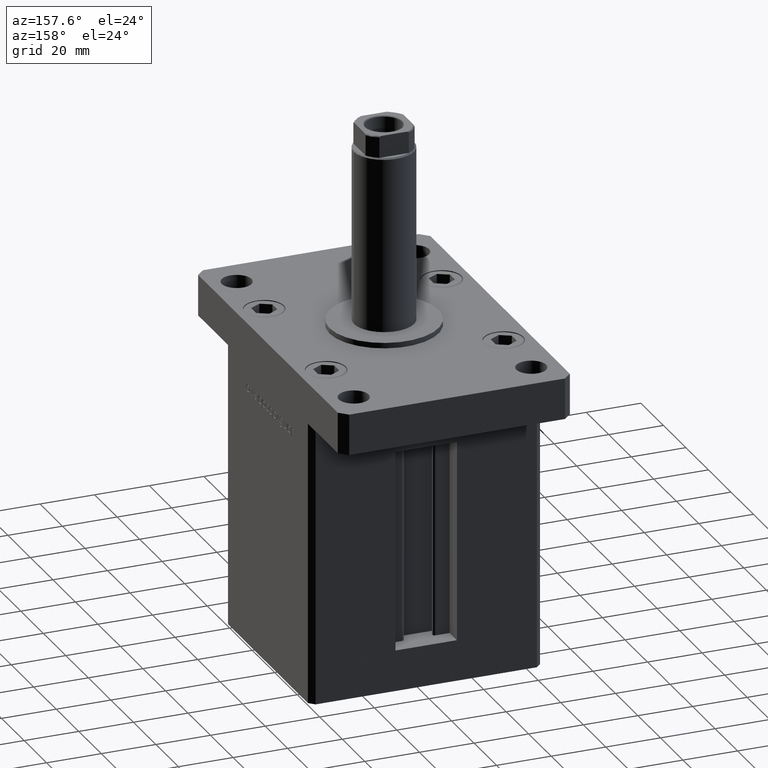
[diagram: clean part render]
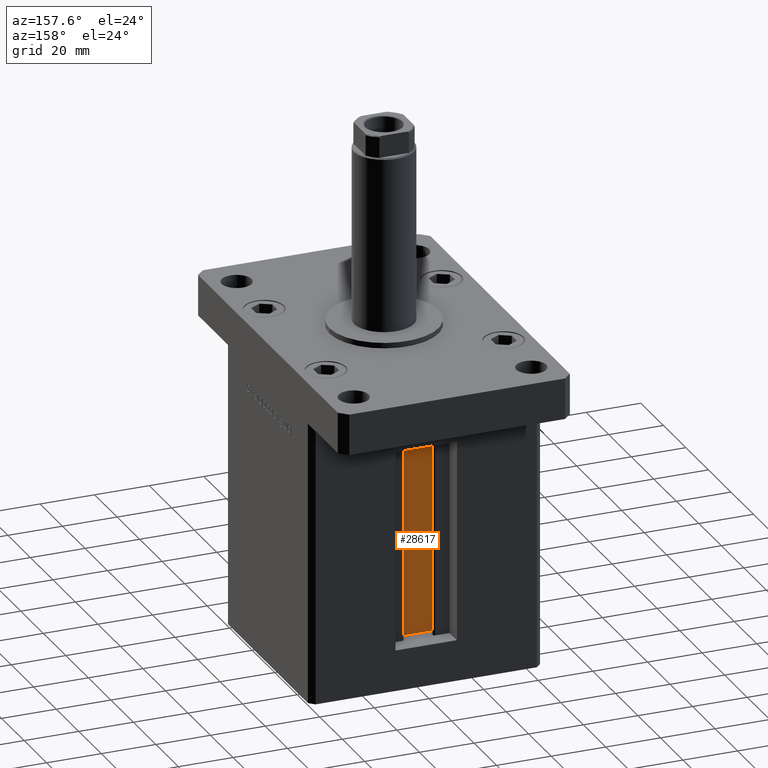
[diagram: same view with one face highlighted and labeled with its STEP entity id]
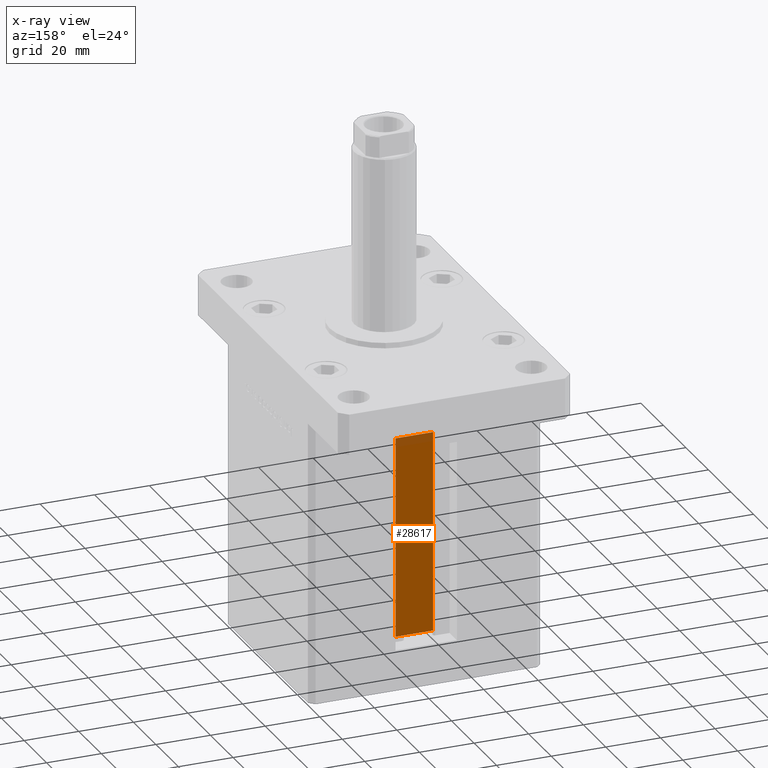
[diagram: x-ray of the same camera — body ghosted, the highlighted face saturated]
A machine part, auxiliary view. The second image highlights one B-rep face of the part: STEP entity #28617.
The next image is the same camera in x-ray: the body ghosted, the highlighted face saturated — about 4% of this face is hidden behind the body in this view.
In plain terms, the highlighted planar face has unit normal (0, -1, 0).
Its self-contained STEP definition (entity closure, byte-faithful):
#485 = AXIS2_PLACEMENT_3D ( 'NONE', #52072, #47745, #23050 ) ;
#958 = LINE ( 'NONE', #5283, #31846 ) ;
#2098 = CARTESIAN_POINT ( 'NONE',  ( 6.876153656360465938, 26.99999999999986855, 0.000000000000000000 ) ) ;
#2450 = LINE ( 'NONE', #18980, #39341 ) ;
#2955 = ORIENTED_EDGE ( 'NONE', *, *, #32475, .F. ) ;
#5283 = CARTESIAN_POINT ( 'NONE',  ( 6.876153656360465938, 26.99999999999986855, 0.000000000000000000 ) ) ;
#5551 = EDGE_CURVE ( 'NONE', #49474, #18938, #41276, .T. ) ;
#8506 = ORIENTED_EDGE ( 'NONE', *, *, #5551, .F. ) ;
#8980 = DIRECTION ( 'NONE',  ( -0.000000000000000000, -0.000000000000000000, 1.000000000000000000 ) ) ;
#9841 = EDGE_CURVE ( 'NONE', #29956, #49474, #958, .T. ) ;
#13570 = CARTESIAN_POINT ( 'NONE',  ( -6.876153656360465938, 26.99999999999986855, 73.50000000000000000 ) ) ;
#13782 = ORIENTED_EDGE ( 'NONE', *, *, #32651, .T. ) ;
#17217 = DIRECTION ( 'NONE',  ( 1.000000000000000000, -0.000000000000000000, -0.000000000000000000 ) ) ;
#17388 = CARTESIAN_POINT ( 'NONE',  ( 6.876153656360465938, 26.99999999999986855, 0.000000000000000000 ) ) ;
#17446 = CARTESIAN_POINT ( 'NONE',  ( 6.876153656360465938, 26.99999999999986855, 73.50000000000000000 ) ) ;
#18938 = VERTEX_POINT ( 'NONE', #17446 ) ;
#18980 = CARTESIAN_POINT ( 'NONE',  ( -6.876153656360465938, 26.99999999999986855, 0.000000000000000000 ) ) ;
#23050 = DIRECTION ( 'NONE',  ( 0.000000000000000000, 0.000000000000000000, -1.000000000000000000 ) ) ;
#23987 = VECTOR ( 'NONE', #39849, 1000.000000000000000 ) ;
#24091 = CARTESIAN_POINT ( 'NONE',  ( 0.000000000000000000, 26.99999999999986855, 73.50000000000000000 ) ) ;
#27111 = LINE ( 'NONE', #24091, #23987 ) ;
#27395 = DIRECTION ( 'NONE',  ( -0.000000000000000000, -0.000000000000000000, 1.000000000000000000 ) ) ;
#27398 = VECTOR ( 'NONE', #8980, 1000.000000000000000 ) ;
#28617 = ADVANCED_FACE ( 'NONE', ( #34736 ), #47189, .F. ) ;
#29956 = VERTEX_POINT ( 'NONE', #44843 ) ;
#31846 = VECTOR ( 'NONE', #17217, 1000.000000000000000 ) ;
#31862 = VERTEX_POINT ( 'NONE', #13570 ) ;
#32475 = EDGE_CURVE ( 'NONE', #18938, #31862, #27111, .T. ) ;
#32651 = EDGE_CURVE ( 'NONE', #29956, #31862, #2450, .T. ) ;
#34736 = FACE_OUTER_BOUND ( 'NONE', #36015, .T. ) ;
#36015 = EDGE_LOOP ( 'NONE', ( #8506, #52966, #13782, #2955 ) ) ;
#39341 = VECTOR ( 'NONE', #27395, 1000.000000000000000 ) ;
#39849 = DIRECTION ( 'NONE',  ( -1.000000000000000000, 0.000000000000000000, 0.000000000000000000 ) ) ;
#41276 = LINE ( 'NONE', #17388, #27398 ) ;
#44843 = CARTESIAN_POINT ( 'NONE',  ( -6.876153656360465938, 26.99999999999986855, 0.000000000000000000 ) ) ;
#47189 = PLANE ( 'NONE',  #485 ) ;
#47745 = DIRECTION ( 'NONE',  ( 0.000000000000000000, -1.000000000000000000, -0.000000000000000000 ) ) ;
#49474 = VERTEX_POINT ( 'NONE', #2098 ) ;
#52072 = CARTESIAN_POINT ( 'NONE',  ( 6.876153656360465938, 26.99999999999986855, 0.000000000000000000 ) ) ;
#52966 = ORIENTED_EDGE ( 'NONE', *, *, #9841, .F. ) ;